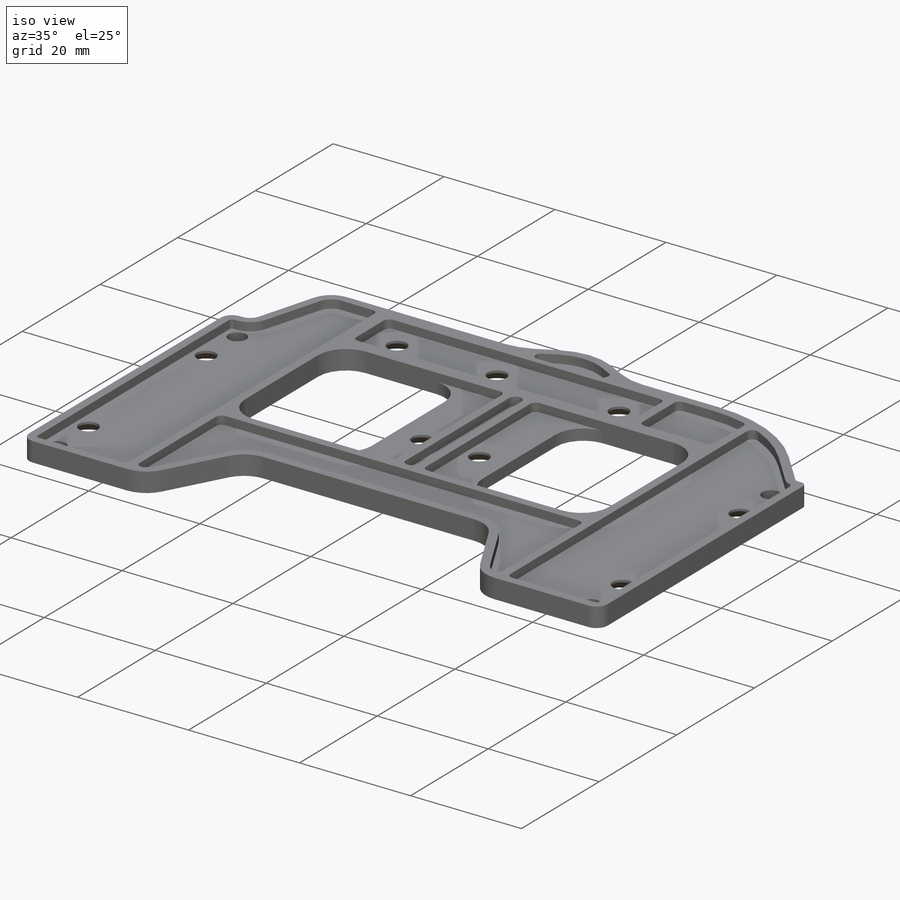
[diagram: iso view]
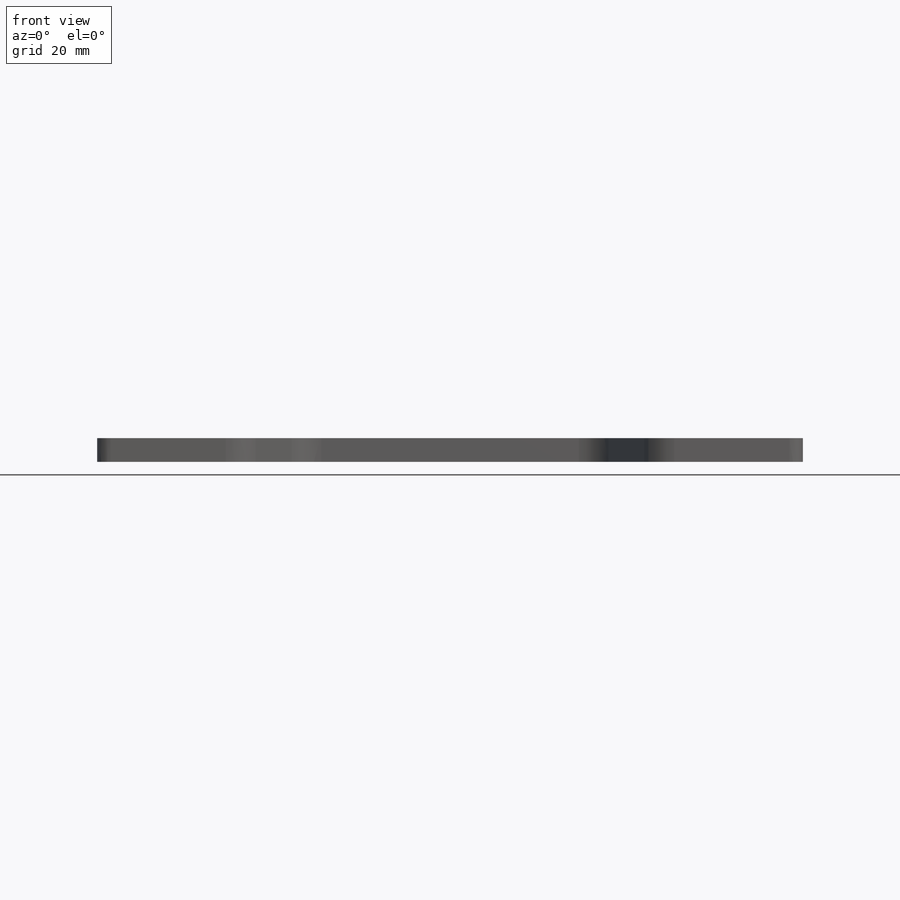
[diagram: front view]
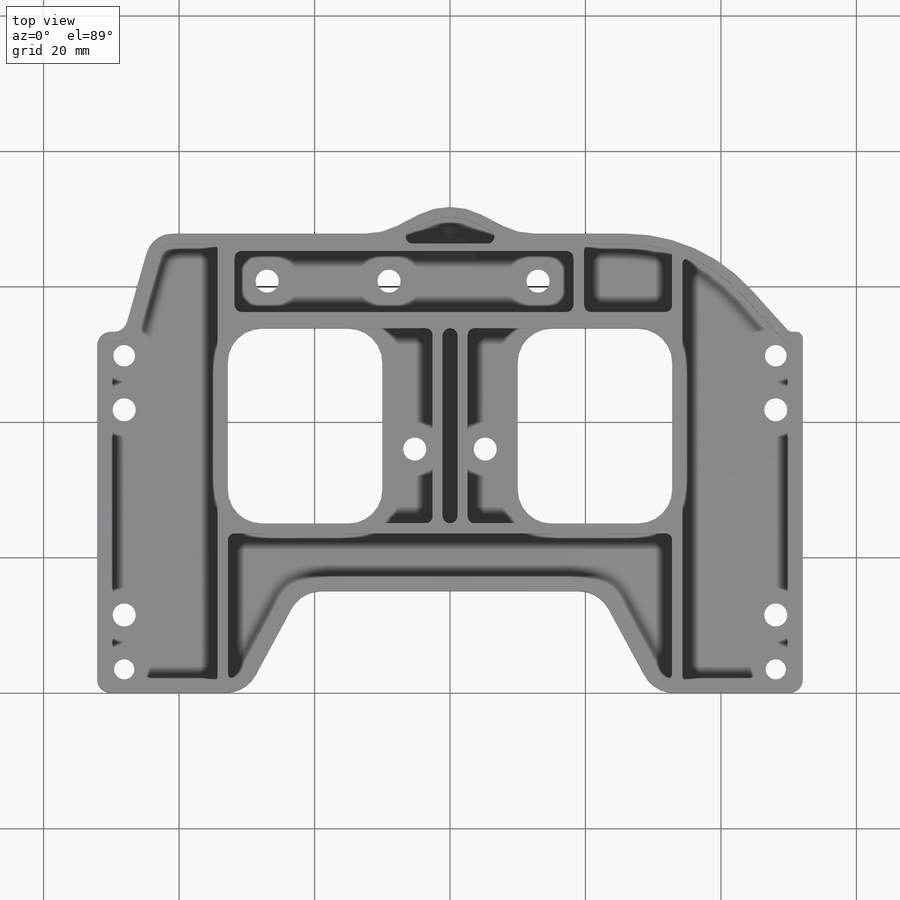
[diagram: top view]
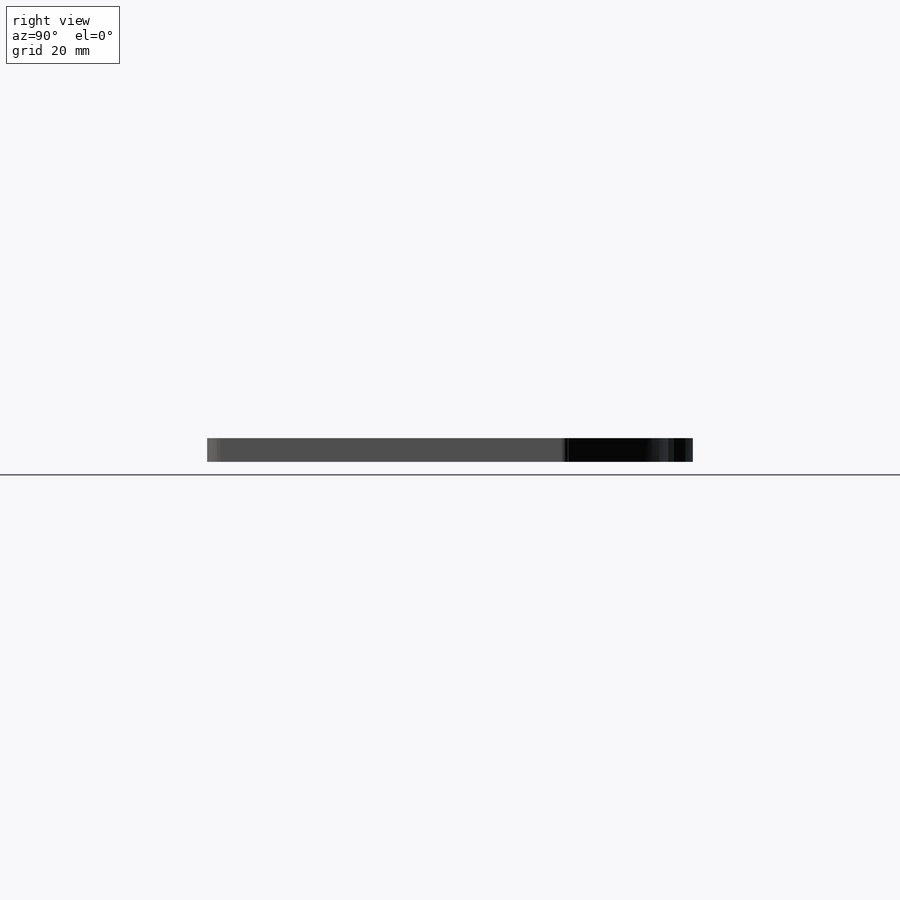
[diagram: right view]
SOLIDWORKS PART (.sldprt)
format: sldprt  version: not decoded by parser v0  size: 640,000 bytes
history: native  units: mm
features: fillet x9, sketch x4, plane x3, material x1, extrude x1, cut_extrude x1, hole x1 (+10 scaffold rows collapsed)
feature tree (30):
  scaffold x10  (default folders/planes/origin — collapsed)
  material  "环氧树脂,未充填"
  plane  "前视基准面"
  plane  "上视基准面"
  plane  "右视基准面"
  sketch  "草图1"  dims[c1.D17=3.0mm c1.D18=3.0mm c1.D19=3.0mm c1.D21=3.0mm c1.D23=~3.211206mm c1.D24=3.0mm c1.D1=73.0mm c1.D2=52.1mm c1.D3=34.0mm c1.D4=15.0mm c1.D5=22.0mm c1.D6=22.0mm c1.D7=53.3mm c1.D8=4.0mm c1.D9=10.0mm c1.D10=67.8mm c1.D11=~23.664736mm c1.D12=~21.446167mm c2.D11=~1.294165mm c2.D12=~1.353284mm c3.D11=22.8mm c3.D12=28.8mm c3.D13=10.0mm c3.D14=10.0mm c3.D15=27.0mm c3.D16=2.0mm c3.D17=13.0mm c3.D18=9.0mm c3.D19=27.0mm c3.D20=60.8mm c3.D21=5.2mm c3.D22=36.0mm c3.D23=8.0mm c3.D24=8.0mm c3.D25=3.5mm c3.D26=4.0mm c3.D27=3.5mm c3.D28=4.0mm]
  extrude  "凸台-拉伸1"  Depth=3.5mm
  fillet  "圆角1"  Radius=10mm
  fillet  "圆角2"  Radius=25mm
  fillet  "圆角3"  Radius=1mm
  fillet  "圆角4"  Radius=2mm
  fillet  "圆角5"  Radius=2mm
  fillet  "圆角6"  Radius=5mm
  fillet  "圆角7"  Radius=5mm
  fillet  "圆角8"  Radius=4mm
  sketch  "草图2"  dims[c1.D11=1.1mm c1.D3=1.5mm c1.D4=~8.962663mm c1.D5=~50.324945mm c2.D4=2.5mm c2.D5=2.6mm c2.D6=2.6mm c2.D7=50.0mm c2.D8=1.5mm c2.D9=14.5mm c2.D10=1.5mm c2.D11=20.0mm c2.D12=1.5mm c2.D13=1.5mm c2.D14=50.0mm c3.D6=9.0mm c3.D14=28.8mm c3.D1=0.0mm c3.D2=1.5mm]
  cut_extrude  "切除-拉伸1"  Depth=1.5mm
  fillet  "圆角9"  Radius=1mm
  hole  "打孔尺寸(%根据)开槽半沉头木螺钉的类型1"  [1 undecoded]
  sketch  "草图4"
  sketch  "草图3"  dims[hole-wizard template sketch: 54 standard entries collapsed; hole parameters kept: c17.通孔孔直径=3.4mm c17.通孔孔深度=3.5mm c17.近端锥形沉头孔直径=6.6mm c17.D4=~3.666174mm c17.近端锥形沉头孔角度=90.0deg]
decode coverage: 14 of 16 modeling features carry decoded parameters
note: ~ marks probable driven/reference dimensions
note: 1 parameter value undecoded
note: suppression state not decoded; provenance and decode notes live in map.json
